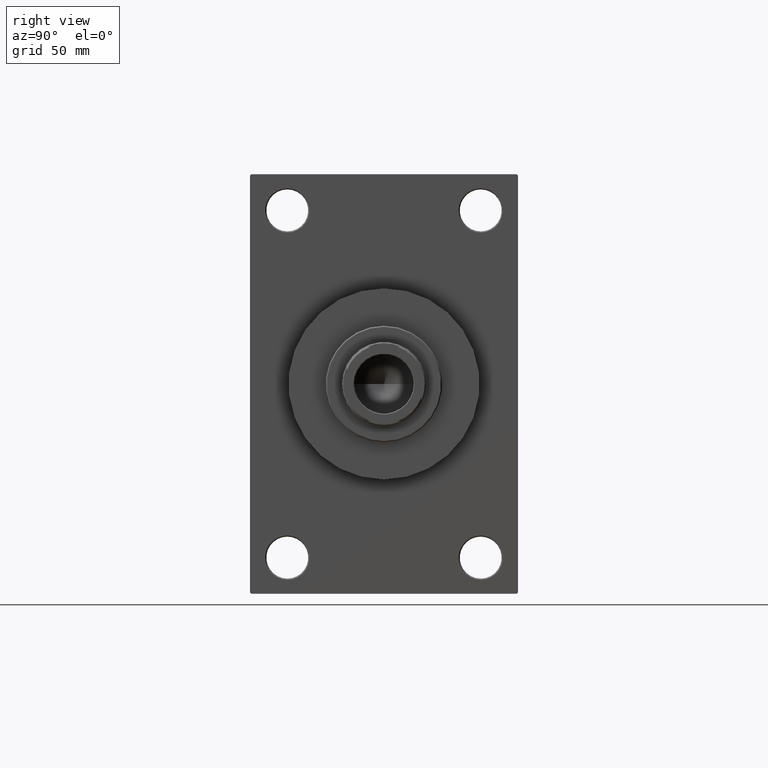
[diagram: clean part render]
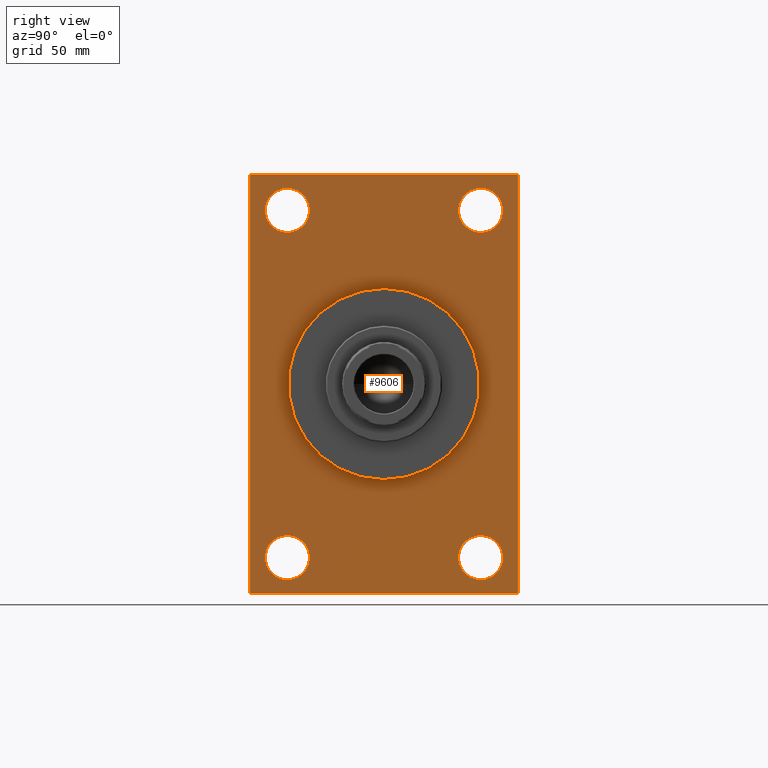
[diagram: same view with one face highlighted and labeled with its STEP entity id]
A machine part, right view. The second image highlights one B-rep face of the part: STEP entity #9606.
In plain terms, the highlighted planar face has unit normal (-1, 0, 0).
Its self-contained STEP definition (entity closure, byte-faithful):
#385 = LINE ( 'NONE', #18729, #45173 ) ;
#540 = CARTESIAN_POINT ( 'NONE',  ( 159.0000000000000000, 56.99999999999994316, 89.99999999999998579 ) ) ;
#715 = CARTESIAN_POINT ( 'NONE',  ( 159.0000000000000000, -57.50000000000002132, -89.49999999999991473 ) ) ;
#1076 = VERTEX_POINT ( 'NONE', #9965 ) ;
#1352 = EDGE_CURVE ( 'NONE', #24813, #34946, #40557, .T. ) ;
#1674 = DIRECTION ( 'NONE',  ( 0.000000000000000000, -1.000000000000000000, -1.206764157201257291E-16 ) ) ;
#1782 = EDGE_CURVE ( 'NONE', #2352, #23010, #3830, .T. ) ;
#2025 = VECTOR ( 'NONE', #9418, 999.9999999999998863 ) ;
#2339 = CIRCLE ( 'NONE', #28531, 41.00000000000000000 ) ;
#2352 = VERTEX_POINT ( 'NONE', #9901 ) ;
#2830 = EDGE_LOOP ( 'NONE', ( #10989, #21603 ) ) ;
#2983 = DIRECTION ( 'NONE',  ( -0.000000000000000000, 0.000000000000000000, 1.000000000000000000 ) ) ;
#3226 = FACE_BOUND ( 'NONE', #23190, .T. ) ;
#3742 = AXIS2_PLACEMENT_3D ( 'NONE', #38614, #45846, #5585 ) ;
#3830 = LINE ( 'NONE', #11775, #37461 ) ;
#3936 = ORIENTED_EDGE ( 'NONE', *, *, #26574, .T. ) ;
#4421 = VERTEX_POINT ( 'NONE', #715 ) ;
#4497 = CARTESIAN_POINT ( 'NONE',  ( 159.0000000000000000, -41.49999999999999289, 84.00000000000001421 ) ) ;
#4976 = ORIENTED_EDGE ( 'NONE', *, *, #1352, .F. ) ;
#5214 = DIRECTION ( 'NONE',  ( 0.000000000000000000, 0.000000000000000000, -1.000000000000000000 ) ) ;
#5585 = DIRECTION ( 'NONE',  ( 0.000000000000000000, 0.000000000000000000, 1.000000000000000000 ) ) ;
#6175 = CARTESIAN_POINT ( 'NONE',  ( 159.0000000000000000, -41.49999999999999289, -83.99999999999998579 ) ) ;
#6261 = VERTEX_POINT ( 'NONE', #46654 ) ;
#6323 = VECTOR ( 'NONE', #5214, 1000.000000000000000 ) ;
#6717 = EDGE_CURVE ( 'NONE', #15314, #39485, #23012, .T. ) ;
#6827 = DIRECTION ( 'NONE',  ( -1.000000000000000000, 0.000000000000000000, -0.000000000000000000 ) ) ;
#7563 = CARTESIAN_POINT ( 'NONE',  ( 159.0000000000000000, -57.50000000000002132, 89.49999999999994316 ) ) ;
#7734 = DIRECTION ( 'NONE',  ( -1.000000000000000000, 0.000000000000000000, -0.000000000000000000 ) ) ;
#7943 = VERTEX_POINT ( 'NONE', #8695 ) ;
#8136 = AXIS2_PLACEMENT_3D ( 'NONE', #22218, #44394, #36924 ) ;
#8508 = DIRECTION ( 'NONE',  ( 0.000000000000000000, 0.000000000000000000, 1.000000000000000000 ) ) ;
#8695 = CARTESIAN_POINT ( 'NONE',  ( 159.0000000000000000, 41.50000000000000711, -64.99999999999998579 ) ) ;
#8943 = EDGE_CURVE ( 'NONE', #9392, #1076, #25082, .T. ) ;
#9282 = VECTOR ( 'NONE', #1674, 1000.000000000000000 ) ;
#9392 = VERTEX_POINT ( 'NONE', #21803 ) ;
#9418 = DIRECTION ( 'NONE',  ( 0.000000000000000000, 0.7071067811865574537, -0.7071067811865376918 ) ) ;
#9606 = ADVANCED_FACE ( 'NONE', ( #32403, #29246, #3226, #22244, #47572, #36718 ), #36958, .F. ) ;
#9846 = AXIS2_PLACEMENT_3D ( 'NONE', #44915, #34542, #8508 ) ;
#9901 = CARTESIAN_POINT ( 'NONE',  ( 159.0000000000000000, -56.99999999999998579, 89.99999999999997158 ) ) ;
#9965 = CARTESIAN_POINT ( 'NONE',  ( 159.0000000000000000, 57.49999999999997868, -89.49999999999990052 ) ) ;
#10989 = ORIENTED_EDGE ( 'NONE', *, *, #24262, .T. ) ;
#11099 = VERTEX_POINT ( 'NONE', #13971 ) ;
#11193 = ORIENTED_EDGE ( 'NONE', *, *, #46799, .F. ) ;
#11600 = DIRECTION ( 'NONE',  ( 0.000000000000000000, 0.000000000000000000, 1.000000000000000000 ) ) ;
#11677 = VERTEX_POINT ( 'NONE', #13071 ) ;
#11730 = ORIENTED_EDGE ( 'NONE', *, *, #40839, .T. ) ;
#11775 = CARTESIAN_POINT ( 'NONE',  ( 159.0000000000000000, -57.50000000000002132, 89.49999999999994316 ) ) ;
#12795 = CIRCLE ( 'NONE', #8136, 9.500000000000008882 ) ;
#13071 = CARTESIAN_POINT ( 'NONE',  ( 159.0000000000000000, -41.49999999999999289, -64.99999999999997158 ) ) ;
#13223 = DIRECTION ( 'NONE',  ( 0.000000000000000000, 3.854941057726238467E-17, -1.000000000000000000 ) ) ;
#13792 = AXIS2_PLACEMENT_3D ( 'NONE', #20688, #38993, #35635 ) ;
#13806 = CARTESIAN_POINT ( 'NONE',  ( 159.0000000000000000, 0.000000000000000000, 0.000000000000000000 ) ) ;
#13971 = CARTESIAN_POINT ( 'NONE',  ( 159.0000000000000000, 56.99999999999994316, 89.99999999999998579 ) ) ;
#14159 = CARTESIAN_POINT ( 'NONE',  ( 159.0000000000000000, 5.021051876504148963E-15, -41.00000000000000000 ) ) ;
#14673 = VECTOR ( 'NONE', #13223, 1000.000000000000000 ) ;
#15129 = ORIENTED_EDGE ( 'NONE', *, *, #18865, .T. ) ;
#15310 = ORIENTED_EDGE ( 'NONE', *, *, #6717, .T. ) ;
#15314 = VERTEX_POINT ( 'NONE', #21906 ) ;
#15982 = ORIENTED_EDGE ( 'NONE', *, *, #37053, .T. ) ;
#16011 = VERTEX_POINT ( 'NONE', #30026 ) ;
#16074 = LINE ( 'NONE', #41862, #6323 ) ;
#16972 = AXIS2_PLACEMENT_3D ( 'NONE', #23851, #35176, #30586 ) ;
#17659 = VERTEX_POINT ( 'NONE', #28450 ) ;
#17721 = ORIENTED_EDGE ( 'NONE', *, *, #25467, .F. ) ;
#17803 = DIRECTION ( 'NONE',  ( 0.000000000000000000, -1.000000000000000000, -1.206764157201257045E-16 ) ) ;
#17915 = DIRECTION ( 'NONE',  ( 0.000000000000000000, 0.000000000000000000, -1.000000000000000000 ) ) ;
#18217 = AXIS2_PLACEMENT_3D ( 'NONE', #21329, #28562, #43276 ) ;
#18410 = LINE ( 'NONE', #540, #40116 ) ;
#18729 = CARTESIAN_POINT ( 'NONE',  ( 159.0000000000000000, 57.49999999999997868, -90.00000000000000000 ) ) ;
#18865 = EDGE_CURVE ( 'NONE', #7943, #16011, #12795, .T. ) ;
#19815 = AXIS2_PLACEMENT_3D ( 'NONE', #30385, #22689, #11600 ) ;
#20647 = VERTEX_POINT ( 'NONE', #6175 ) ;
#20688 = CARTESIAN_POINT ( 'NONE',  ( 159.0000000000000000, 41.50000000000000711, 74.50000000000001421 ) ) ;
#21031 = VERTEX_POINT ( 'NONE', #47524 ) ;
#21310 = AXIS2_PLACEMENT_3D ( 'NONE', #13806, #24906, #17915 ) ;
#21329 = CARTESIAN_POINT ( 'NONE',  ( 159.0000000000000000, -41.49999999999999289, 74.50000000000001421 ) ) ;
#21603 = ORIENTED_EDGE ( 'NONE', *, *, #31337, .T. ) ;
#21803 = CARTESIAN_POINT ( 'NONE',  ( 159.0000000000000000, 56.99999999999992895, -90.00000000000000000 ) ) ;
#21906 = CARTESIAN_POINT ( 'NONE',  ( 159.0000000000000000, 41.50000000000000711, 84.00000000000001421 ) ) ;
#22123 = CIRCLE ( 'NONE', #19815, 9.500000000000008882 ) ;
#22218 = CARTESIAN_POINT ( 'NONE',  ( 159.0000000000000000, 41.50000000000000711, -74.50000000000000000 ) ) ;
#22244 = FACE_BOUND ( 'NONE', #38675, .T. ) ;
#22320 = AXIS2_PLACEMENT_3D ( 'NONE', #47115, #6827, #2983 ) ;
#22689 = DIRECTION ( 'NONE',  ( -1.000000000000000000, 0.000000000000000000, -0.000000000000000000 ) ) ;
#22894 = ORIENTED_EDGE ( 'NONE', *, *, #26027, .T. ) ;
#23010 = VERTEX_POINT ( 'NONE', #7563 ) ;
#23012 = CIRCLE ( 'NONE', #13792, 9.500000000000008882 ) ;
#23190 = EDGE_LOOP ( 'NONE', ( #38172, #15129 ) ) ;
#23432 = EDGE_CURVE ( 'NONE', #4421, #17659, #27733, .T. ) ;
#23851 = CARTESIAN_POINT ( 'NONE',  ( 159.0000000000000000, 41.50000000000000711, 74.50000000000001421 ) ) ;
#24262 = EDGE_CURVE ( 'NONE', #21031, #42006, #38980, .T. ) ;
#24813 = VERTEX_POINT ( 'NONE', #14159 ) ;
#24906 = DIRECTION ( 'NONE',  ( 1.000000000000000000, 0.000000000000000000, 0.000000000000000000 ) ) ;
#25082 = LINE ( 'NONE', #36170, #28485 ) ;
#25467 = EDGE_CURVE ( 'NONE', #9392, #17659, #385, .T. ) ;
#25520 = EDGE_LOOP ( 'NONE', ( #38378, #4976 ) ) ;
#26027 = EDGE_CURVE ( 'NONE', #20647, #11677, #22123, .T. ) ;
#26574 = EDGE_CURVE ( 'NONE', #11677, #20647, #42952, .T. ) ;
#26908 = ORIENTED_EDGE ( 'NONE', *, *, #37049, .T. ) ;
#26985 = ORIENTED_EDGE ( 'NONE', *, *, #8943, .T. ) ;
#27733 = LINE ( 'NONE', #42451, #2025 ) ;
#28450 = CARTESIAN_POINT ( 'NONE',  ( 159.0000000000000000, -56.99999999999996447, -90.00000000000001421 ) ) ;
#28485 = VECTOR ( 'NONE', #28702, 999.9999999999998863 ) ;
#28531 = AXIS2_PLACEMENT_3D ( 'NONE', #44588, #30120, #34938 ) ;
#28562 = DIRECTION ( 'NONE',  ( -1.000000000000000000, 0.000000000000000000, -0.000000000000000000 ) ) ;
#28702 = DIRECTION ( 'NONE',  ( -0.000000000000000000, 0.7071067811865574537, 0.7071067811865376918 ) ) ;
#29046 = ORIENTED_EDGE ( 'NONE', *, *, #23432, .T. ) ;
#29208 = CIRCLE ( 'NONE', #34616, 9.500000000000008882 ) ;
#29246 = FACE_BOUND ( 'NONE', #32493, .T. ) ;
#29320 = EDGE_CURVE ( 'NONE', #16011, #7943, #38388, .T. ) ;
#30026 = CARTESIAN_POINT ( 'NONE',  ( 159.0000000000000000, 41.50000000000000711, -84.00000000000000000 ) ) ;
#30120 = DIRECTION ( 'NONE',  ( 1.000000000000000000, 0.000000000000000000, 0.000000000000000000 ) ) ;
#30385 = CARTESIAN_POINT ( 'NONE',  ( 159.0000000000000000, -41.49999999999999289, -74.49999999999998579 ) ) ;
#30586 = DIRECTION ( 'NONE',  ( 0.000000000000000000, 0.000000000000000000, 1.000000000000000000 ) ) ;
#31337 = EDGE_CURVE ( 'NONE', #42006, #21031, #29208, .T. ) ;
#32403 = FACE_BOUND ( 'NONE', #2830, .T. ) ;
#32493 = EDGE_LOOP ( 'NONE', ( #22894, #3936 ) ) ;
#32635 = DIRECTION ( 'NONE',  ( 0.000000000000000000, -0.7071067811865474617, 0.7071067811865474617 ) ) ;
#34204 = CARTESIAN_POINT ( 'NONE',  ( 159.0000000000000000, 57.49999999999997158, 89.99999999999998579 ) ) ;
#34542 = DIRECTION ( 'NONE',  ( -1.000000000000000000, 0.000000000000000000, -0.000000000000000000 ) ) ;
#34616 = AXIS2_PLACEMENT_3D ( 'NONE', #36913, #7734, #40526 ) ;
#34682 = LINE ( 'NONE', #46729, #14673 ) ;
#34938 = DIRECTION ( 'NONE',  ( 0.000000000000000000, 0.000000000000000000, -1.000000000000000000 ) ) ;
#34946 = VERTEX_POINT ( 'NONE', #39059 ) ;
#35176 = DIRECTION ( 'NONE',  ( -1.000000000000000000, 0.000000000000000000, -0.000000000000000000 ) ) ;
#35635 = DIRECTION ( 'NONE',  ( 0.000000000000000000, 0.000000000000000000, 1.000000000000000000 ) ) ;
#35923 = CARTESIAN_POINT ( 'NONE',  ( 159.0000000000000000, 41.50000000000000711, 65.00000000000000000 ) ) ;
#36170 = CARTESIAN_POINT ( 'NONE',  ( 159.0000000000000000, 57.49999999999997868, -89.49999999999995737 ) ) ;
#36238 = CIRCLE ( 'NONE', #16972, 9.500000000000008882 ) ;
#36718 = FACE_OUTER_BOUND ( 'NONE', #41146, .T. ) ;
#36913 = CARTESIAN_POINT ( 'NONE',  ( 159.0000000000000000, -41.49999999999999289, 74.50000000000001421 ) ) ;
#36924 = DIRECTION ( 'NONE',  ( 0.000000000000000000, 0.000000000000000000, 1.000000000000000000 ) ) ;
#36958 = PLANE ( 'NONE',  #22320 ) ;
#36993 = EDGE_CURVE ( 'NONE', #34946, #24813, #2339, .T. ) ;
#37049 = EDGE_CURVE ( 'NONE', #11099, #2352, #42159, .T. ) ;
#37053 = EDGE_CURVE ( 'NONE', #39485, #15314, #36238, .T. ) ;
#37461 = VECTOR ( 'NONE', #40473, 1000.000000000000000 ) ;
#37515 = EDGE_CURVE ( 'NONE', #6261, #11099, #18410, .T. ) ;
#38001 = ORIENTED_EDGE ( 'NONE', *, *, #37515, .T. ) ;
#38172 = ORIENTED_EDGE ( 'NONE', *, *, #29320, .T. ) ;
#38378 = ORIENTED_EDGE ( 'NONE', *, *, #36993, .F. ) ;
#38388 = CIRCLE ( 'NONE', #3742, 9.500000000000008882 ) ;
#38614 = CARTESIAN_POINT ( 'NONE',  ( 159.0000000000000000, 41.50000000000000711, -74.50000000000000000 ) ) ;
#38675 = EDGE_LOOP ( 'NONE', ( #15982, #15310 ) ) ;
#38980 = CIRCLE ( 'NONE', #18217, 9.500000000000008882 ) ;
#38993 = DIRECTION ( 'NONE',  ( -1.000000000000000000, 0.000000000000000000, -0.000000000000000000 ) ) ;
#39059 = CARTESIAN_POINT ( 'NONE',  ( 159.0000000000000000, 0.000000000000000000, 41.00000000000000000 ) ) ;
#39485 = VERTEX_POINT ( 'NONE', #35923 ) ;
#40116 = VECTOR ( 'NONE', #32635, 1000.000000000000114 ) ;
#40473 = DIRECTION ( 'NONE',  ( -0.000000000000000000, -0.7071067811865524577, -0.7071067811865426878 ) ) ;
#40526 = DIRECTION ( 'NONE',  ( 0.000000000000000000, 0.000000000000000000, 1.000000000000000000 ) ) ;
#40557 = CIRCLE ( 'NONE', #21310, 41.00000000000000000 ) ;
#40839 = EDGE_CURVE ( 'NONE', #23010, #4421, #16074, .T. ) ;
#41146 = EDGE_LOOP ( 'NONE', ( #11730, #29046, #17721, #26985, #11193, #38001, #26908, #46878 ) ) ;
#41862 = CARTESIAN_POINT ( 'NONE',  ( 159.0000000000000000, -57.50000000000002132, 89.99999999999997158 ) ) ;
#42006 = VERTEX_POINT ( 'NONE', #4497 ) ;
#42159 = LINE ( 'NONE', #34204, #9282 ) ;
#42451 = CARTESIAN_POINT ( 'NONE',  ( 159.0000000000000000, -56.99999999999996447, -90.00000000000001421 ) ) ;
#42952 = CIRCLE ( 'NONE', #9846, 9.500000000000008882 ) ;
#43276 = DIRECTION ( 'NONE',  ( 0.000000000000000000, 0.000000000000000000, 1.000000000000000000 ) ) ;
#44394 = DIRECTION ( 'NONE',  ( -1.000000000000000000, 0.000000000000000000, -0.000000000000000000 ) ) ;
#44588 = CARTESIAN_POINT ( 'NONE',  ( 159.0000000000000000, 0.000000000000000000, 0.000000000000000000 ) ) ;
#44915 = CARTESIAN_POINT ( 'NONE',  ( 159.0000000000000000, -41.49999999999999289, -74.49999999999998579 ) ) ;
#45173 = VECTOR ( 'NONE', #17803, 1000.000000000000000 ) ;
#45846 = DIRECTION ( 'NONE',  ( -1.000000000000000000, 0.000000000000000000, -0.000000000000000000 ) ) ;
#46654 = CARTESIAN_POINT ( 'NONE',  ( 159.0000000000000000, 57.49999999999997158, 89.49999999999995737 ) ) ;
#46729 = CARTESIAN_POINT ( 'NONE',  ( 159.0000000000000000, 57.49999999999997158, 89.99999999999998579 ) ) ;
#46799 = EDGE_CURVE ( 'NONE', #6261, #1076, #34682, .T. ) ;
#46878 = ORIENTED_EDGE ( 'NONE', *, *, #1782, .T. ) ;
#47115 = CARTESIAN_POINT ( 'NONE',  ( 159.0000000000000000, 0.000000000000000000, 0.000000000000000000 ) ) ;
#47524 = CARTESIAN_POINT ( 'NONE',  ( 159.0000000000000000, -41.49999999999999289, 65.00000000000000000 ) ) ;
#47572 = FACE_BOUND ( 'NONE', #25520, .T. ) ;